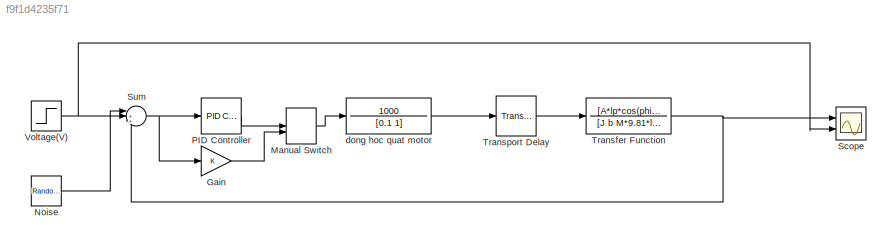
MODEL slx_f9f1d4235f71
KIND model
CONFIG AbsTol = auto
CONFIG EnableMultiTasking = off
CONFIG FixedStep = 0.005
CONFIG MaxStep = auto
CONFIG MinStep = auto
CONFIG RelTol = 1e-3
CONFIG SampleTimeConstraint = Unconstrained
CONFIG Solver = FixedStepAuto
CONFIG SolverName = FixedStepAuto
CONFIG StartTime = 0.0
CONFIG StopTime = 100.0
BLOCK [Gain] Gain
  Gain = K
  OutDataTypeStr = Inherit: Inherit via internal rule
  ParamDataTypeStr = Inherit: Inherit via internal rule
  SaturateOnIntegerOverflow = off
BLOCK [ManualSwitch] Manual Switch
BLOCK [RandomNumber] Noise 
  SampleTime = 0.1
  Variance = 0.001
BLOCK [Reference] PID Controller  REF=simulink/Continuous/PID Controller
  Ports = [1, 1]
  SourceBlock = simulink/Continuous/PID Controller
  SourceProductBaseCode = SL
  SourceProductName = Simulink
  SourceType = PID 1dof
BLOCK [Scope] Scope
  Floating = off
  NumInputPorts = 2
  Ports = [2]
  ScopeSpecificationString = Simulink.scopes.TimeScopeBlockCfg('CurrentConfiguration', extmgr.ConfigurationSet(extmgr.Configuration('Core','General UI',true,'FigureColor',[1 1 1]),extmgr.Configuration('Core','Source UI',true),extmgr.Configuration('Sources','WiredSimulink',true),extmgr.Configuration('Visuals','Time Domain',true,'SerializedDisplays',{struct('MinYLimReal','-0.62934','MaxYLimReal','5.66196','YLabelReal','','MinYL...<+1617ch>
BLOCK [Sum] Sum
  IconShape = round
  InputSameDT = off
  Inputs = |++-
  OutDataTypeStr = Inherit: Inherit via internal rule
  Ports = [3, 1]
  SaturateOnIntegerOverflow = off
BLOCK [TransferFcn] Transfer Function
  Denominator = [J b M*9.81*lm*cos(phi0)+F0*A*lp*sin(phi0)]
  Numerator = [A*lp*cos(phi0)]
BLOCK [TransportDelay] Transport Delay
  DelayTime = 0.02
  Ports = [1, 1]
BLOCK [Step] Voltage(V)
  After = 5
  SampleTime = 0
BLOCK [TransferFcn] dong hoc quat motor
  Denominator = [0.1 1]
  Numerator = 1000
LINE Gain:1 -> Manual Switch:2
LINE Manual Switch:1 -> dong hoc quat motor:1
LINE Noise :1 -> Sum:2
LINE PID Controller:1 -> Manual Switch:1
NET Sum:1 -> Gain:1, PID Controller:1
NET Transfer Function:1 -> Scope:1, Sum:3
LINE Transport Delay:1 -> Transfer Function:1
NET Voltage(V):1 -> Scope:2, Sum:1
LINE dong hoc quat motor:1 -> Transport Delay:1
note: NET lines group one-source signal fan-out (src -> all destinations, sorted); 1:1 wires keep LINE
